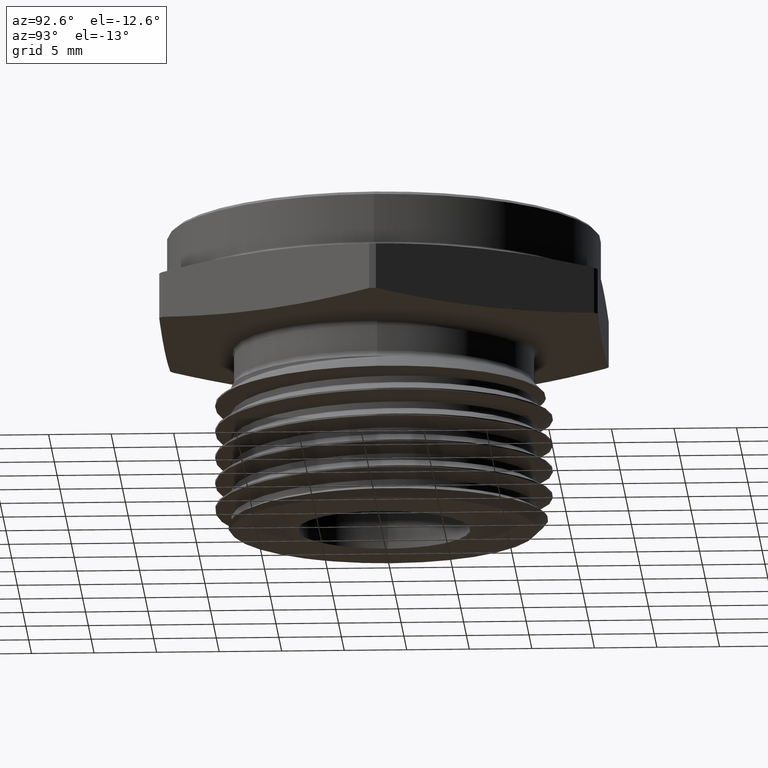
[diagram: clean part render]
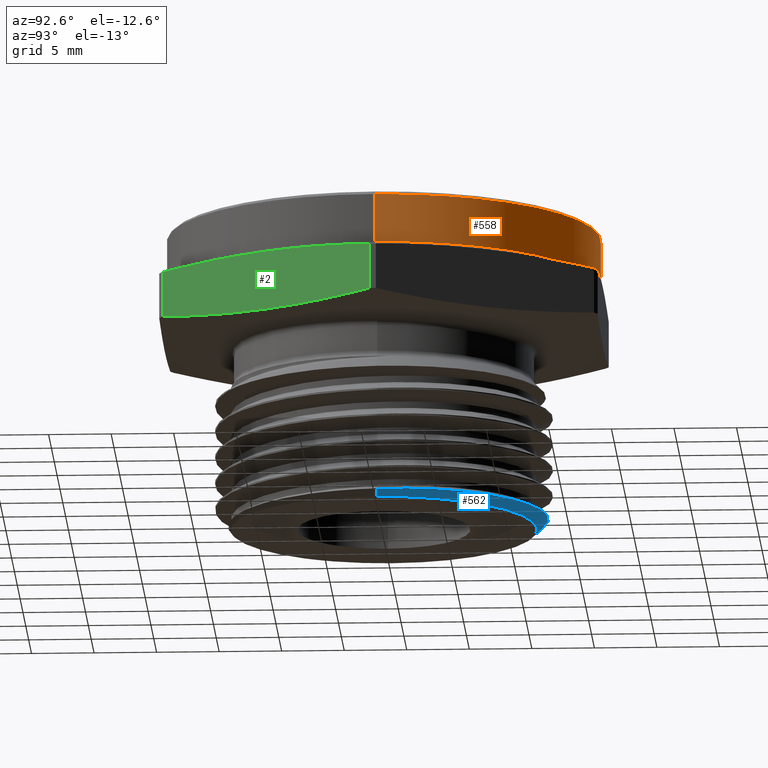
[diagram: same view with three faces highlighted in distinct colors, each labeled with its STEP entity id]
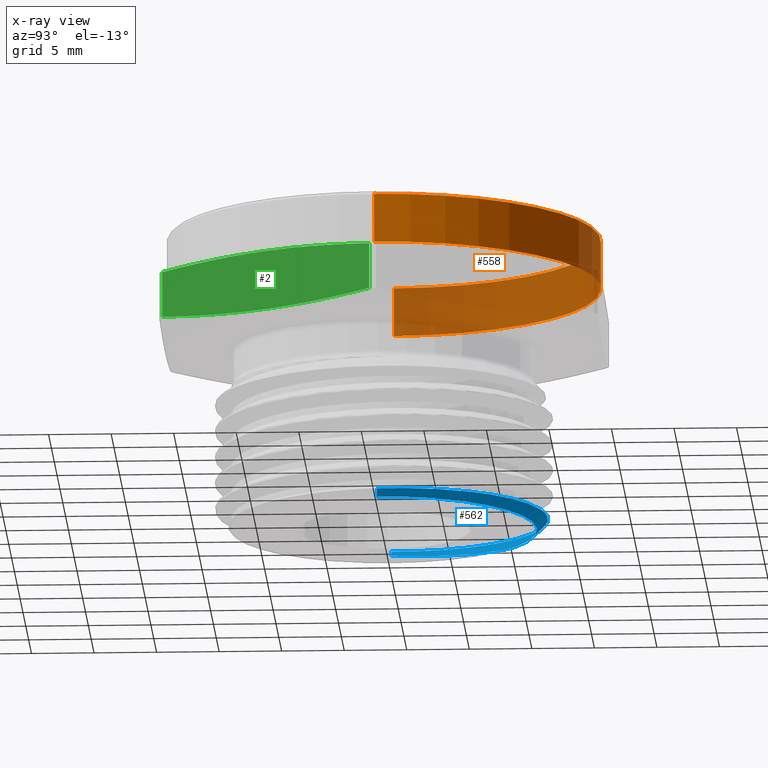
[diagram: x-ray of the same camera — body ghosted, the three highlighted faces saturated]
A machine part, auxiliary view with three faces highlighted in distinct colors.
The next image is the same camera in x-ray (body ghosted, the three faces saturated) — at least one of them is partly hidden behind the body in this view.
Their STEP definitions:

[orange] entity #558 — the highlighted cylindrical surface (partial cylindrical patch) has radius 17.3355 mm, axis along (-0, -0, -1).
#558 = ADVANCED_FACE ( 'NONE', ( #794 ), #793, .T. ) ;
#608 = ORIENTED_EDGE ( 'NONE', *, *, #2551, .T. ) ;
#609 = ORIENTED_EDGE ( 'NONE', *, *, #2550, .F. ) ;
#648 = EDGE_LOOP ( 'NONE', ( #2507, #2508, #608, #609 ) ) ;
#793 = CYLINDRICAL_SURFACE ( 'NONE', #2666, 0.6825000000000004400 ) ;
#794 = FACE_OUTER_BOUND ( 'NONE', #648, .T. ) ;
#816 = VECTOR ( 'NONE', #2274, 39.37007874015748100 ) ;
#821 = CIRCLE ( 'NONE', #1529, 0.6825000000000004400 ) ;
#1528 = AXIS2_PLACEMENT_3D ( 'NONE', #2271, #2270, #2269 ) ;
#1529 = AXIS2_PLACEMENT_3D ( 'NONE', #2265, #2264, #2263 ) ;
#1893 = CARTESIAN_POINT ( 'NONE',  ( -0.6825000000000004400, 0.0000000000000000000, 0.1964782722655601700 ) ) ;
#2263 = DIRECTION ( 'NONE',  ( 1.000000000000000000, 0.0000000000000000000, 0.0000000000000000000 ) ) ;
#2264 = DIRECTION ( 'NONE',  ( 0.0000000000000000000, 0.0000000000000000000, -1.000000000000000000 ) ) ;
#2265 = CARTESIAN_POINT ( 'NONE',  ( 0.0000000000000000000, 0.0000000000000000000, 0.3499999999999997000 ) ) ;
#2269 = DIRECTION ( 'NONE',  ( 1.000000000000000000, 0.0000000000000000000, -5.003384603780698600E-017 ) ) ;
#2270 = DIRECTION ( 'NONE',  ( 6.123233995736748800E-017, 0.0000000000000000000, 1.000000000000000000 ) ) ;
#2271 = CARTESIAN_POINT ( 'NONE',  ( 0.0000000000000000000, 0.0000000000000000000, 0.1964782722655601400 ) ) ;
#2272 = CARTESIAN_POINT ( 'NONE',  ( 0.6825000000000004400, 8.358214404180691200E-017, 0.3599999999999999900 ) ) ;
#2274 = DIRECTION ( 'NONE',  ( -0.0000000000000000000, -0.0000000000000000000, -1.000000000000000000 ) ) ;
#2278 = CARTESIAN_POINT ( 'NONE',  ( -0.6825000000000004400, 0.0000000000000000000, 0.3599999999999999900 ) ) ;
#2282 = DIRECTION ( 'NONE',  ( -0.0000000000000000000, -0.0000000000000000000, -1.000000000000000000 ) ) ;
#2479 = VERTEX_POINT ( 'NONE', #3107 ) ;
#2480 = VERTEX_POINT ( 'NONE', #3111 ) ;
#2494 = VERTEX_POINT ( 'NONE', #3091 ) ;
#2507 = ORIENTED_EDGE ( 'NONE', *, *, #2554, .T. ) ;
#2508 = ORIENTED_EDGE ( 'NONE', *, *, #2552, .T. ) ;
#2550 = EDGE_CURVE ( 'NONE', #2480, #2745, #2877, .T. ) ;
#2551 = EDGE_CURVE ( 'NONE', #2494, #2745, #2881, .T. ) ;
#2552 = EDGE_CURVE ( 'NONE', #2479, #2494, #2882, .T. ) ;
#2554 = EDGE_CURVE ( 'NONE', #2480, #2479, #821, .T. ) ;
#2666 = AXIS2_PLACEMENT_3D ( 'NONE', #3172, #3169, #3173 ) ;
#2745 = VERTEX_POINT ( 'NONE', #1893 ) ;
#2877 = LINE ( 'NONE', #2278, #2883 ) ;
#2881 = CIRCLE ( 'NONE', #1528, 0.6825000000000004400 ) ;
#2882 = LINE ( 'NONE', #2272, #816 ) ;
#2883 = VECTOR ( 'NONE', #2282, 39.37007874015748100 ) ;
#3091 = CARTESIAN_POINT ( 'NONE',  ( 0.6825000000000004400, 8.358214404180691200E-017, 0.1964782722655600800 ) ) ;
#3107 = CARTESIAN_POINT ( 'NONE',  ( 0.6825000000000004400, 8.358214404180691200E-017, 0.3499999999999997000 ) ) ;
#3111 = CARTESIAN_POINT ( 'NONE',  ( -0.6825000000000004400, 0.0000000000000000000, 0.3499999999999997000 ) ) ;
#3169 = DIRECTION ( 'NONE',  ( -0.0000000000000000000, -0.0000000000000000000, -1.000000000000000000 ) ) ;
#3172 = CARTESIAN_POINT ( 'NONE',  ( 0.0000000000000000000, 0.0000000000000000000, 0.3599999999999999900 ) ) ;
#3173 = DIRECTION ( 'NONE',  ( -1.000000000000000000, 0.0000000000000000000, 0.0000000000000000000 ) ) ;

[blue] entity #562 — the highlighted conical surface has half-angle 45 deg.
#562 = ADVANCED_FACE ( 'NONE', ( #792 ), #806, .T. ) ;
#622 = ORIENTED_EDGE ( 'NONE', *, *, #2514, .F. ) ;
#623 = ORIENTED_EDGE ( 'NONE', *, *, #2517, .T. ) ;
#624 = ORIENTED_EDGE ( 'NONE', *, *, #2511, .F. ) ;
#625 = ORIENTED_EDGE ( 'NONE', *, *, #2543, .F. ) ;
#626 = ORIENTED_EDGE ( 'NONE', *, *, #2539, .T. ) ;
#649 = EDGE_LOOP ( 'NONE', ( #622, #623, #624, #625, #626 ) ) ;
#792 = FACE_OUTER_BOUND ( 'NONE', #649, .T. ) ;
#806 = CONICAL_SURFACE ( 'NONE', #2667, 0.4816499999999999700, 0.7853981633974600500 ) ;
#1522 = AXIS2_PLACEMENT_3D ( 'NONE', #2358, #2357, #2356 ) ;
#1599 = B_SPLINE_CURVE_WITH_KNOTS ( 'NONE', 3,
 ( #3073, #3087, #3072, #3071, #3070, #3069, #3068, #3067, #3066, #3065, #3064, #3063, #3062, #3061, #3060, #3059, #3058, #3057, #3056, #3055, #3054, #3053, #3051, #3050, #3049, #3048, #3047, #3046, #3045, #3044, #3043, #3042, #3041, #3040, #3039, #3038, #3037, #3036, #3035, #3034, #3033, #3032, #3031, #3030, #3029, #3028, #3027, #3026, #3025, #3024, #3023, #3022, #3021 ),
 .UNSPECIFIED., .F., .F.,
 ( 4, 2, 1, 2, 2, 2, 2, 2, 2, 2, 2, 2, 2, 2, 2, 2, 2, 2, 2, 2, 2, 2, 2, 2, 2, 2, 4 ),
 ( 0.03200466711660524700, 0.03329515726735898800, 0.03458564741811273600, 0.03587613756886647700, 0.03716662771962022500, 0.03974760802112771400, 0.04103809817188146200, 0.04232858832263520400, 0.04490956862414269300, 0.04620005877489644100, 0.04749054892565018200, 0.04878103907640392300, 0.05007152922715767100, 0.05265250952866516000, 0.05394299967941890200, 0.05523348983017265000, 0.05781447013168013200, 0.05910496028243388000, 0.06039545043318762800, 0.06297643073469511000, 0.06426692088544885800, 0.06555741103620260600, 0.06684790118695635400, 0.06813839133771008900, 0.07071937163921758500, 0.07200986178997133300, 0.07330035194072508100 ),
 .UNSPECIFIED. ) ;
#1600 = B_SPLINE_CURVE_WITH_KNOTS ( 'NONE', 3,
 ( #3014, #3015, #3020, #3013, #3012, #3011, #3010, #3009, #3008, #3007, #3006, #3005, #3004 ),
 .UNSPECIFIED., .F., .F.,
 ( 4, 2, 2, 1, 2, 2, 4 ),
 ( 0.007950519457397020900, 0.01107150464885495500, 0.01263199724458392200, 0.01419248984031288800, 0.01575298243604185400, 0.01731347503177082400, 0.02043446022322875600 ),
 .UNSPECIFIED. ) ;
#1867 = CARTESIAN_POINT ( 'NONE',  ( -0.2675687117050809000, 0.4004918313979491400, -0.5799999999999999600 ) ) ;
#1880 = CARTESIAN_POINT ( 'NONE',  ( 0.4816499999999999700, 0.0000000000000000000, -0.5799999999999999600 ) ) ;
#1896 = CARTESIAN_POINT ( 'NONE',  ( -0.5124795282245548900, -3.622984340412145800E-013, -0.5491704717754457600 ) ) ;
#2308 = CARTESIAN_POINT ( 'NONE',  ( 0.4816499999999999700, 0.0000000000000000000, -0.5799999999999999600 ) ) ;
#2354 = DIRECTION ( 'NONE',  ( 0.7071067811865557900, 0.0000000000000000000, 0.7071067811865392500 ) ) ;
#2356 = DIRECTION ( 'NONE',  ( 1.000000000000000000, 0.0000000000000000000, 0.0000000000000000000 ) ) ;
#2357 = DIRECTION ( 'NONE',  ( -0.0000000000000000000, -0.0000000000000000000, 1.000000000000000000 ) ) ;
#2358 = CARTESIAN_POINT ( 'NONE',  ( 0.0000000000000000000, 0.0000000000000000000, -0.5799999999999999600 ) ) ;
#2473 = VERTEX_POINT ( 'NONE', #3126 ) ;
#2485 = VERTEX_POINT ( 'NONE', #3101 ) ;
#2511 = EDGE_CURVE ( 'NONE', #2473, #2485, #1599, .T. ) ;
#2514 = EDGE_CURVE ( 'NONE', #2729, #2691, #1600, .T. ) ;
#2517 = EDGE_CURVE ( 'NONE', #2729, #2485, #2843, .T. ) ;
#2539 = EDGE_CURVE ( 'NONE', #2705, #2691, #2871, .T. ) ;
#2543 = EDGE_CURVE ( 'NONE', #2705, #2473, #2875, .T. ) ;
#2667 = AXIS2_PLACEMENT_3D ( 'NONE', #3152, #3150, #3155 ) ;
#2691 = VERTEX_POINT ( 'NONE', #1867 ) ;
#2705 = VERTEX_POINT ( 'NONE', #1880 ) ;
#2729 = VERTEX_POINT ( 'NONE', #1896 ) ;
#2843 = LINE ( 'NONE', #2996, #2848 ) ;
#2848 = VECTOR ( 'NONE', #2995, 39.37007874015748100 ) ;
#2871 = CIRCLE ( 'NONE', #1522, 0.4816499999999999700 ) ;
#2875 = LINE ( 'NONE', #2308, #2876 ) ;
#2876 = VECTOR ( 'NONE', #2354, 39.37007874015748100 ) ;
#2995 = DIRECTION ( 'NONE',  ( -0.7071067811865557900, 8.659560562355033900E-017, 0.7071067811865392500 ) ) ;
#2996 = CARTESIAN_POINT ( 'NONE',  ( -0.4816499999999999700, 5.898511308093226000E-017, -0.5799999999999999600 ) ) ;
#3004 = CARTESIAN_POINT ( 'NONE',  ( -0.2675687117050809000, 0.4004918313979491400, -0.5799999999999999600 ) ) ;
#3005 = CARTESIAN_POINT ( 'NONE',  ( -0.3032237767270173400, 0.3799392903358150800, -0.5772821447029487000 ) ) ;
#3006 = CARTESIAN_POINT ( 'NONE',  ( -0.3355457195441574600, 0.3553199974570936900, -0.5746306526742796000 ) ) ;
#3007 = CARTESIAN_POINT ( 'NONE',  ( -0.3791700893974515000, 0.3124638763609960400, -0.5707428964994749600 ) ) ;
#3008 = CARTESIAN_POINT ( 'NONE',  ( -0.3929614479581874400, 0.2970543860038852300, -0.5694668817023638100 ) ) ;
#3009 = CARTESIAN_POINT ( 'NONE',  ( -0.4182619238074359900, 0.2649700232234297200, -0.5669416371984733500 ) ) ;
#3010 = CARTESIAN_POINT ( 'NONE',  ( -0.4414246354603690300, 0.2315815675041989800, -0.5643979704076274000 ) ) ;
#3011 = CARTESIAN_POINT ( 'NONE',  ( -0.4604024003941181700, 0.1956400023243758400, -0.5618206836366560500 ) ) ;
#3012 = CARTESIAN_POINT ( 'NONE',  ( -0.4772392144641659000, 0.1583922835032468600, -0.5592265252360842900 ) ) ;
#3013 = CARTESIAN_POINT ( 'NONE',  ( -0.4845786230516268000, 0.1390740136775518400, -0.5579188663265899400 ) ) ;
#3014 = CARTESIAN_POINT ( 'NONE',  ( -0.5124795282245548900, -3.622984340412145800E-013, -0.5491704717754457600 ) ) ;
#3015 = CARTESIAN_POINT ( 'NONE',  ( -0.5100591520370121300, 0.04088149648795073200, -0.5515908479630168300 ) ) ;
#3020 = CARTESIAN_POINT ( 'NONE',  ( -0.5027519570971876700, 0.08075427028480000600, -0.5540784189733404300 ) ) ;
#3021 = CARTESIAN_POINT ( 'NONE',  ( -0.5295341594542558600, 8.706395761207154000E-013, -0.5321158405457451200 ) ) ;
#3022 = CARTESIAN_POINT ( 'NONE',  ( -0.5292745450232314600, 0.01690977193036318600, -0.5323754549767416600 ) ) ;
#3023 = CARTESIAN_POINT ( 'NONE',  ( -0.5281937041242934500, 0.03392464596081956600, -0.5326411333770443300 ) ) ;
#3024 = CARTESIAN_POINT ( 'NONE',  ( -0.5243908159928195600, 0.06772087390861612800, -0.5331779052341953900 ) ) ;
#3025 = CARTESIAN_POINT ( 'NONE',  ( -0.5216872105916857700, 0.08440290141659098600, -0.5334473811196722700 ) ) ;
#3026 = CARTESIAN_POINT ( 'NONE',  ( -0.5112406829599472900, 0.1338197881826087000, -0.5342590481048693500 ) ) ;
#3027 = CARTESIAN_POINT ( 'NONE',  ( -0.5011833297508604400, 0.1659311840439518000, -0.5348044599430048500 ) ) ;
#3028 = CARTESIAN_POINT ( 'NONE',  ( -0.4813461116399206400, 0.2128183977169665100, -0.5356292462244700600 ) ) ;
#3029 = CARTESIAN_POINT ( 'NONE',  ( -0.4739287609540312500, 0.2282207770224028400, -0.5359051513756242200 ) ) ;
#3030 = CARTESIAN_POINT ( 'NONE',  ( -0.4578143889912105200, 0.2579329232631922300, -0.5364473153139576200 ) ) ;
#3031 = CARTESIAN_POINT ( 'NONE',  ( -0.4490833476787712800, 0.2723296592859005800, -0.5367150886661998800 ) ) ;
#3032 = CARTESIAN_POINT ( 'NONE',  ( -0.4302941590433087500, 0.3002185033260566000, -0.5372440716448723100 ) ) ;
#3033 = CARTESIAN_POINT ( 'NONE',  ( -0.4202378975640240800, 0.3137119414668830800, -0.5375029760994146600 ) ) ;
#3034 = CARTESIAN_POINT ( 'NONE',  ( -0.3987655358091148300, 0.3397714915583662200, -0.5380340635343343600 ) ) ;
#3035 = CARTESIAN_POINT ( 'NONE',  ( -0.3872925433023943200, 0.3523953414389539000, -0.5383058217808944800 ) ) ;
#3036 = CARTESIAN_POINT ( 'NONE',  ( -0.3511828203813923700, 0.3884025486134093400, -0.5391268277466621000 ) ) ;
#3037 = CARTESIAN_POINT ( 'NONE',  ( -0.3251309681914362800, 0.4097308276389093900, -0.5396763280717589200 ) ) ;
#3038 = CARTESIAN_POINT ( 'NONE',  ( -0.2831711959655368600, 0.4378248661809747100, -0.5405038651982428900 ) ) ;
#3039 = CARTESIAN_POINT ( 'NONE',  ( -0.2687008648022008500, 0.4465352057571219700, -0.5407802594714145000 ) ) ;
#3040 = CARTESIAN_POINT ( 'NONE',  ( -0.2387653834096949700, 0.4626102258984776700, -0.5413341619814660000 ) ) ;
#3041 = CARTESIAN_POINT ( 'NONE',  ( -0.2233449672439557800, 0.4699393973281901200, -0.5416107366698825800 ) ) ;
#3042 = CARTESIAN_POINT ( 'NONE',  ( -0.1765813536930850600, 0.4894435454309977700, -0.5424243707805526100 ) ) ;
#3043 = CARTESIAN_POINT ( 'NONE',  ( -0.1444384649025219300, 0.4993366417340228100, -0.5429427337529293400 ) ) ;
#3044 = CARTESIAN_POINT ( 'NONE',  ( -0.09474917850162901900, 0.5094297454320102500, -0.5437595758834393700 ) ) ;
#3045 = CARTESIAN_POINT ( 'NONE',  ( -0.07784386038954797800, 0.5120064839223472700, -0.5440379163482614900 ) ) ;
#3046 = CARTESIAN_POINT ( 'NONE',  ( -0.04407138359794669100, 0.5154529552070512600, -0.5445948783279080900 ) ) ;
#3047 = CARTESIAN_POINT ( 'NONE',  ( -0.02721414459525400800, 0.5163338624592008800, -0.5448733299518024900 ) ) ;
#3048 = CARTESIAN_POINT ( 'NONE',  ( 0.02327278158906753700, 0.5165137309491857300, -0.5457086325036523100 ) ) ;
#3049 = CARTESIAN_POINT ( 'NONE',  ( 0.05681850052835884400, 0.5133737382047345300, -0.5462654449201904700 ) ) ;
#3050 = CARTESIAN_POINT ( 'NONE',  ( 0.1069626493184778900, 0.5035971888602146500, -0.5471004760368610700 ) ) ;
#3051 = CARTESIAN_POINT ( 'NONE',  ( 0.1234665704942429900, 0.4995182517838769900, -0.5473757646302758200 ) ) ;
#3053 = CARTESIAN_POINT ( 'NONE',  ( 0.1557850423128937200, 0.4898351318595943200, -0.5479156843439209100 ) ) ;
#3054 = CARTESIAN_POINT ( 'NONE',  ( 0.1716458306313667400, 0.4842229906171233700, -0.5481800913923828800 ) ) ;
#3055 = CARTESIAN_POINT ( 'NONE',  ( 0.2027664900321115000, 0.4714482662613639400, -0.5487222580411736900 ) ) ;
#3056 = CARTESIAN_POINT ( 'NONE',  ( 0.2180274188836937300, 0.4642882902016898800, -0.5489972839776073900 ) ) ;
#3057 = CARTESIAN_POINT ( 'NONE',  ( 0.2479379743176488000, 0.4483908548491741300, -0.5495554449979439500 ) ) ;
#3058 = CARTESIAN_POINT ( 'NONE',  ( 0.2626435698835025100, 0.4396075420636809100, -0.5498397899949562000 ) ) ;
#3059 = CARTESIAN_POINT ( 'NONE',  ( 0.3049097728285842800, 0.4114119847614402000, -0.5506873676366616000 ) ) ;
#3060 = CARTESIAN_POINT ( 'NONE',  ( 0.3309100781499001400, 0.3900582591392427500, -0.5512499732258893100 ) ) ;
#3061 = CARTESIAN_POINT ( 'NONE',  ( 0.3666799528187579800, 0.3542339295273999600, -0.5520902094706007200 ) ) ;
#3062 = CARTESIAN_POINT ( 'NONE',  ( 0.3780988911248788800, 0.3416084863728549600, -0.5523706539125696800 ) ) ;
#3063 = CARTESIAN_POINT ( 'NONE',  ( 0.3996385023403119500, 0.3152444646696692700, -0.5529257839682698600 ) ) ;
#3064 = CARTESIAN_POINT ( 'NONE',  ( 0.4096700046022842500, 0.3016295921533511100, -0.5531952128470144500 ) ) ;
#3065 = CARTESIAN_POINT ( 'NONE',  ( 0.4375916280516932200, 0.2595116168219278000, -0.5540102651605310900 ) ) ;
#3066 = CARTESIAN_POINT ( 'NONE',  ( 0.4533265146991032900, 0.2297455893759923200, -0.5545673353731283000 ) ) ;
#3067 = CARTESIAN_POINT ( 'NONE',  ( 0.4724915178961288100, 0.1824963225433815800, -0.5554243998717787200 ) ) ;
#3068 = CARTESIAN_POINT ( 'NONE',  ( 0.4781004999182632000, 0.1663664018052979600, -0.5557126111423066300 ) ) ;
#3069 = CARTESIAN_POINT ( 'NONE',  ( 0.4875855431985439100, 0.1339431867275393300, -0.5562835854260259600 ) ) ;
#3070 = CARTESIAN_POINT ( 'NONE',  ( 0.4954073145117026700, 0.1011924045120859700, -0.5568521039355631700 ) ) ;
#3071 = CARTESIAN_POINT ( 'NONE',  ( 0.4999424641492672400, 0.06779434991762275900, -0.5574157436317847000 ) ) ;
#3072 = CARTESIAN_POINT ( 'NONE',  ( 0.5028045776566620900, 0.03406680426346381200, -0.5579768575553864000 ) ) ;
#3073 = CARTESIAN_POINT ( 'NONE',  ( 0.5031185512786202600, -2.141698986817652400E-016, -0.5585314487213800500 ) ) ;
#3087 = CARTESIAN_POINT ( 'NONE',  ( 0.5033924289586350100, 0.01694891536316033700, -0.5582575710413654200 ) ) ;
#3101 = CARTESIAN_POINT ( 'NONE',  ( -0.5295341594542558600, 8.706395761207154000E-013, -0.5321158405457451200 ) ) ;
#3126 = CARTESIAN_POINT ( 'NONE',  ( 0.5031185512786202600, -2.141698986817652400E-016, -0.5585314487213800500 ) ) ;
#3150 = DIRECTION ( 'NONE',  ( -0.0000000000000000000, -0.0000000000000000000, 1.000000000000000000 ) ) ;
#3152 = CARTESIAN_POINT ( 'NONE',  ( 0.0000000000000000000, 0.0000000000000000000, -0.5799999999999999600 ) ) ;
#3155 = DIRECTION ( 'NONE',  ( 1.000000000000000000, 0.0000000000000000000, 0.0000000000000000000 ) ) ;

[green] entity #2 — the highlighted planar face has unit normal (-0.866, 0.5, 0).
#2 = ADVANCED_FACE ( 'NONE', ( #759 ), #3200, .F. ) ;
#325 = CARTESIAN_POINT ( 'NONE',  ( 0.7906734779410753400, -0.01051336400886681900, -2.364988292110565100E-017 ) ) ;
#326 = DIRECTION ( 'NONE',  ( -1.224646799147349800E-016, -0.0000000000000000000, -1.000000000000000000 ) ) ;
#330 = CARTESIAN_POINT ( 'NONE',  ( 0.4366275708364192300, -0.6237388633259433000, 0.1736753538400129500 ) ) ;
#331 = CARTESIAN_POINT ( 'NONE',  ( 0.4688135623913880500, -0.5679910906607547000, 0.1790821112945622800 ) ) ;
#335 = CARTESIAN_POINT ( 'NONE',  ( 0.7584874863861066400, -0.06626113667405560100, 0.01632464615998709100 ) ) ;
#336 = CARTESIAN_POINT ( 'NONE',  ( 0.4044415792814505800, -0.6794866359911321300, 0.1669921611342825600 ) ) ;
#338 = CARTESIAN_POINT ( 'NONE',  ( 0.5331855455013254600, -0.4564955453303770600, 0.1864576584993905600 ) ) ;
#339 = CARTESIAN_POINT ( 'NONE',  ( 0.5975575286112629900, -0.3449999999999994700, 0.1903539930755591700 ) ) ;
#340 = CARTESIAN_POINT ( 'NONE',  ( 0.6619295117212002900, -0.2335044546696219700, 0.1864576584993905600 ) ) ;
#341 = CARTESIAN_POINT ( 'NONE',  ( 0.7263014948311379300, -0.1220089093392444800, 0.1790821112945622500 ) ) ;
#342 = CARTESIAN_POINT ( 'NONE',  ( 0.7584874863861066400, -0.06626113667405567100, 0.1736753538400128700 ) ) ;
#343 = CARTESIAN_POINT ( 'NONE',  ( 0.7906734779410753400, -0.01051336400886681900, 0.1669921611342824700 ) ) ;
#344 = CARTESIAN_POINT ( 'NONE',  ( 0.4044415792814505800, -0.6794866359911321300, 2.364988292110565100E-017 ) ) ;
#345 = CARTESIAN_POINT ( 'NONE',  ( 0.7906734779410753400, -0.01051336400886681900, 0.02300783886571749300 ) ) ;
#346 = DIRECTION ( 'NONE',  ( 1.224646799147349800E-016, 0.0000000000000000000, 1.000000000000000000 ) ) ;
#348 = CARTESIAN_POINT ( 'NONE',  ( 0.7263014948311378200, -0.1220089093392443800, 0.01091788870543777300 ) ) ;
#349 = CARTESIAN_POINT ( 'NONE',  ( 0.6619295117212000700, -0.2335044546696219100, 0.003542341500609394300 ) ) ;
#350 = CARTESIAN_POINT ( 'NONE',  ( 0.5975575286112633200, -0.3449999999999994200, -0.0003539930755591544000 ) ) ;
#351 = CARTESIAN_POINT ( 'NONE',  ( 0.5331855455013254600, -0.4564955453303770600, 0.003542341500609400800 ) ) ;
#352 = CARTESIAN_POINT ( 'NONE',  ( 0.4688135623913880500, -0.5679910906607547000, 0.01091788870543779700 ) ) ;
#353 = CARTESIAN_POINT ( 'NONE',  ( 0.4366275708364192900, -0.6237388633259433000, 0.01632464615998712200 ) ) ;
#354 = CARTESIAN_POINT ( 'NONE',  ( 0.4044415792814505800, -0.6794866359911321300, 0.02300783886571749300 ) ) ;
#602 = ORIENTED_EDGE ( 'NONE', *, *, #2602, .F. ) ;
#603 = ORIENTED_EDGE ( 'NONE', *, *, #2603, .F. ) ;
#604 = ORIENTED_EDGE ( 'NONE', *, *, #2604, .F. ) ;
#605 = ORIENTED_EDGE ( 'NONE', *, *, #2605, .F. ) ;
#660 = EDGE_LOOP ( 'NONE', ( #602, #603, #604, #605 ) ) ;
#759 = FACE_OUTER_BOUND ( 'NONE', #660, .T. ) ;
#857 = LINE ( 'NONE', #325, #861 ) ;
#859 = LINE ( 'NONE', #344, #860 ) ;
#860 = VECTOR ( 'NONE', #346, 39.37007874015748100 ) ;
#861 = VECTOR ( 'NONE', #326, 39.37007874015748100 ) ;
#876 = B_SPLINE_CURVE_WITH_KNOTS ( 'NONE', 3,
 ( #336, #330, #331, #338, #339, #340, #341, #342, #343 ),
 .UNSPECIFIED., .F., .F.,
 ( 4, 2, 1, 2, 4 ),
 ( 1.926240183809887600E-006, 0.004907071353161051400, 0.009812216466138293200, 0.01471736157911553500, 0.01962250669209277700 ),
 .UNSPECIFIED. ) ;
#877 = B_SPLINE_CURVE_WITH_KNOTS ( 'NONE', 3,
 ( #345, #335, #348, #349, #350, #351, #352, #353, #354 ),
 .UNSPECIFIED., .F., .F.,
 ( 4, 2, 1, 2, 4 ),
 ( 1.926240183814861800E-006, 0.004907071353161056700, 0.009812216466138298400, 0.01471736157911554000, 0.01962250669209278400 ),
 .UNSPECIFIED. ) ;
#1905 = CARTESIAN_POINT ( 'NONE',  ( 0.4044415792814505800, -0.6794866359911321300, 0.02300783886571749300 ) ) ;
#1906 = CARTESIAN_POINT ( 'NONE',  ( 0.4044415792814505800, -0.6794866359911321300, 0.1669921611342825600 ) ) ;
#1910 = CARTESIAN_POINT ( 'NONE',  ( 0.7906734779410753400, -0.01051336400886681900, 0.1669921611342824700 ) ) ;
#2481 = VERTEX_POINT ( 'NONE', #3105 ) ;
#2602 = EDGE_CURVE ( 'NONE', #2746, #2481, #857, .T. ) ;
#2603 = EDGE_CURVE ( 'NONE', #2741, #2746, #876, .T. ) ;
#2604 = EDGE_CURVE ( 'NONE', #2740, #2741, #859, .T. ) ;
#2605 = EDGE_CURVE ( 'NONE', #2481, #2740, #877, .T. ) ;
#2648 = AXIS2_PLACEMENT_3D ( 'NONE', #3194, #3191, #3190 ) ;
#2740 = VERTEX_POINT ( 'NONE', #1905 ) ;
#2741 = VERTEX_POINT ( 'NONE', #1906 ) ;
#2746 = VERTEX_POINT ( 'NONE', #1910 ) ;
#3105 = CARTESIAN_POINT ( 'NONE',  ( 0.7906734779410753400, -0.01051336400886681900, 0.02300783886571749300 ) ) ;
#3190 = DIRECTION ( 'NONE',  ( -0.4999999999999991700, -0.8660254037844391500, 0.0000000000000000000 ) ) ;
#3191 = DIRECTION ( 'NONE',  ( -0.8660254037844391500, 0.4999999999999991700, 0.0000000000000000000 ) ) ;
#3194 = CARTESIAN_POINT ( 'NONE',  ( 0.3983716857408422000, -0.6899999999999998400, 0.1899999999999999700 ) ) ;
#3200 = PLANE ( 'NONE',  #2648 ) ;